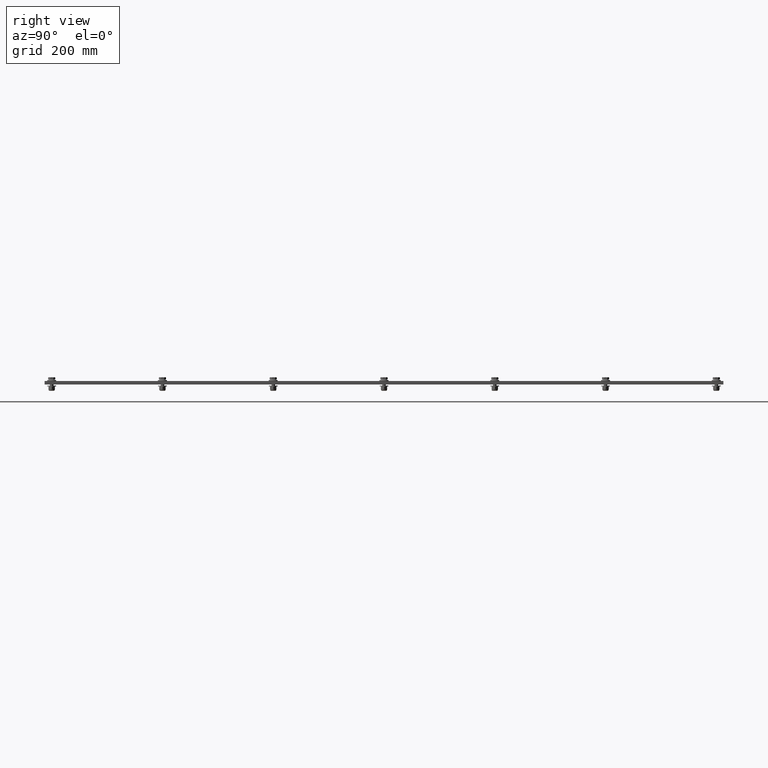
[diagram: clean part render]
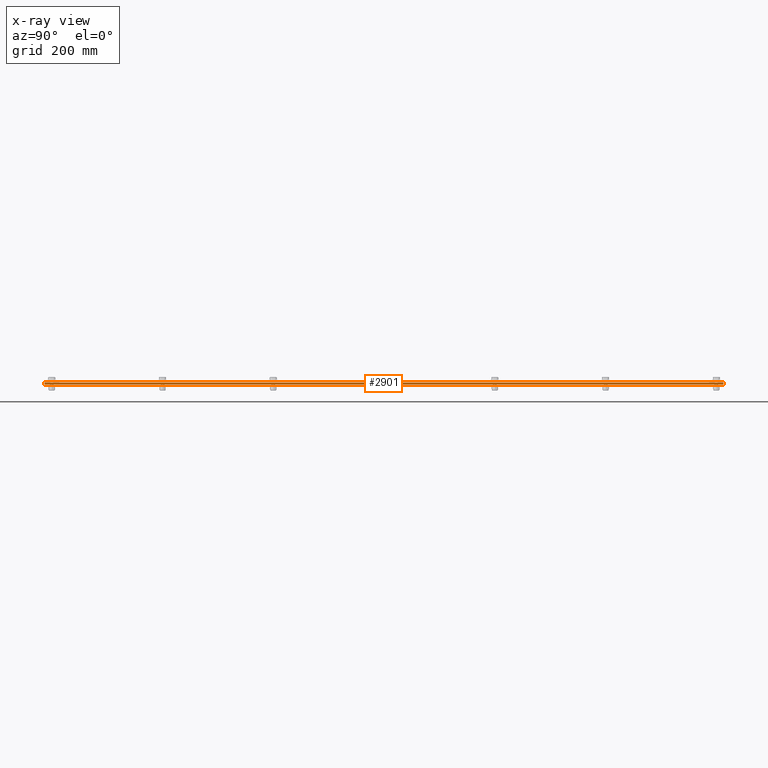
[diagram: x-ray — body ghosted, one internal face saturated and labeled with its STEP entity id]
A machine part, right view, then the same camera in x-ray: the body is ghosted and one INTERNAL B-rep face — a face not visible from any outside direction — is saturated and labeled: STEP entity #2901.
In plain terms, the highlighted planar face has unit normal (1, 0, 0).
Its self-contained STEP definition (entity closure, byte-faithful):
#676=FACE_OUTER_BOUND('',#955,.T.);
#955=EDGE_LOOP('',(#2219,#2220,#2221,#2222));
#1156=LINE('',#4549,#1297);
#1157=LINE('',#4551,#1298);
#1158=LINE('',#4553,#1299);
#1159=LINE('',#4554,#1300);
#1297=VECTOR('',#3736,48.);
#1298=VECTOR('',#3737,0.125);
#1299=VECTOR('',#3738,48.);
#1300=VECTOR('',#3739,0.125);
#1528=VERTEX_POINT('',#4547);
#1529=VERTEX_POINT('',#4548);
#1530=VERTEX_POINT('',#4550);
#1531=VERTEX_POINT('',#4552);
#1798=EDGE_CURVE('',#1528,#1529,#1156,.T.);
#1799=EDGE_CURVE('',#1530,#1529,#1157,.T.);
#1800=EDGE_CURVE('',#1531,#1530,#1158,.T.);
#1801=EDGE_CURVE('',#1531,#1528,#1159,.T.);
#2219=ORIENTED_EDGE('',*,*,#1798,.T.);
#2220=ORIENTED_EDGE('',*,*,#1799,.F.);
#2221=ORIENTED_EDGE('',*,*,#1800,.F.);
#2222=ORIENTED_EDGE('',*,*,#1801,.T.);
#2655=PLANE('',#3172);
#2901=ADVANCED_FACE('',(#676),#2655,.T.);
#3172=AXIS2_PLACEMENT_3D('',#4546,#3734,#3735);
#3734=DIRECTION('center_axis',(1.,2.91397119324188E-16,0.));
#3735=DIRECTION('ref_axis',(0.,0.,-1.));
#3736=DIRECTION('',(2.91397119324188E-16,-1.,0.));
#3737=DIRECTION('',(0.,0.,1.));
#3738=DIRECTION('',(2.91397119324188E-16,-1.,0.));
#3739=DIRECTION('',(0.,0.,1.));
#4546=CARTESIAN_POINT('Origin',(13.7300886570073,13.0296085104034,0.));
#4547=CARTESIAN_POINT('',(13.7300886570073,13.0296085104034,0.125));
#4548=CARTESIAN_POINT('',(13.7300886570073,-34.9703914895966,0.125));
#4549=CARTESIAN_POINT('',(13.7300886570073,13.0296085104034,0.125));
#4550=CARTESIAN_POINT('',(13.7300886570073,-34.9703914895966,0.));
#4551=CARTESIAN_POINT('',(13.7300886570073,-34.9703914895966,0.));
#4552=CARTESIAN_POINT('',(13.7300886570073,13.0296085104034,0.));
#4553=CARTESIAN_POINT('',(13.7300886570073,13.0296085104034,0.));
#4554=CARTESIAN_POINT('',(13.7300886570073,13.0296085104034,0.));